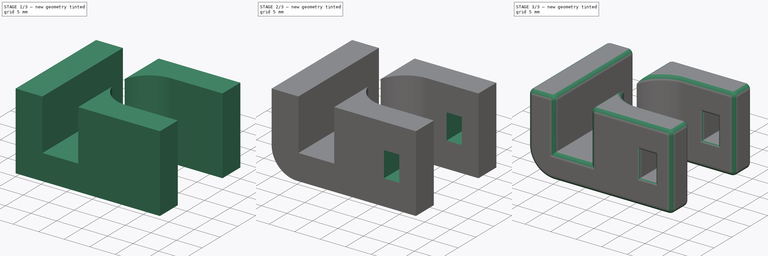
[diagram: build sequence overview — one tinted view per stage of 3, left to right]
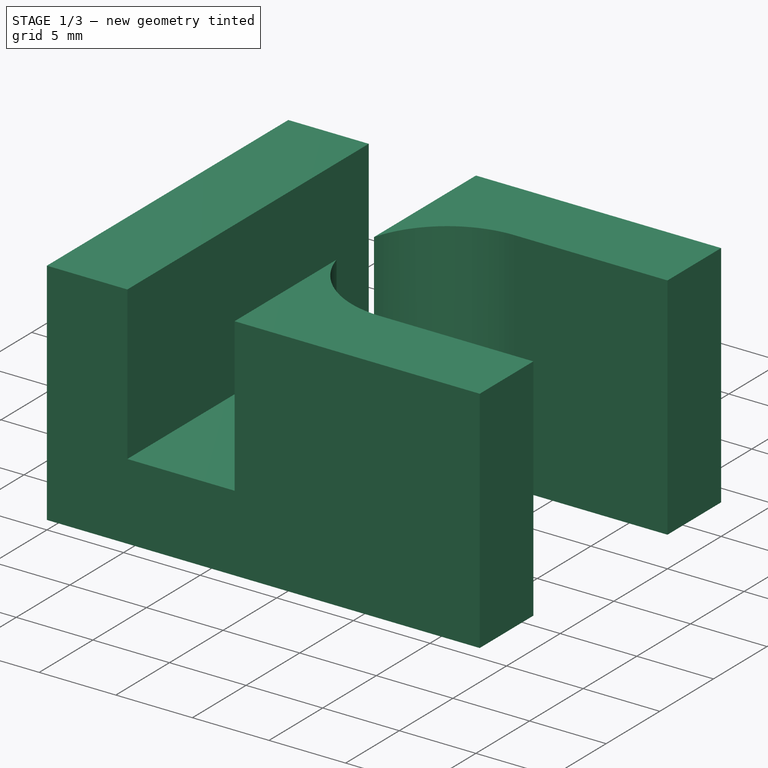
[diagram: stage 1 of 3 — iso view after this stage's code; geometry added in this stage tinted green]
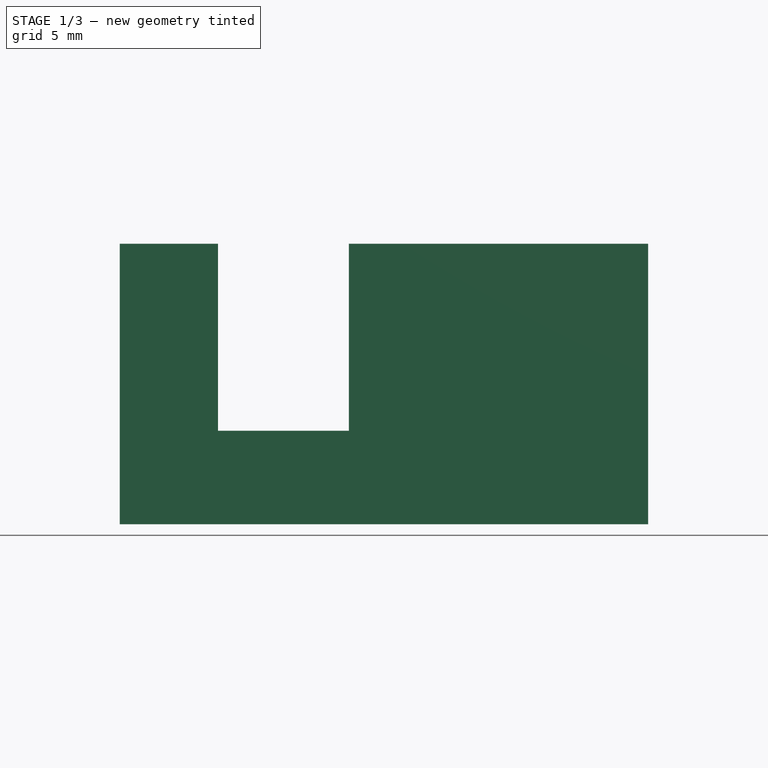
[diagram: stage 1 of 3 — front view after this stage's code; geometry added in this stage tinted green]
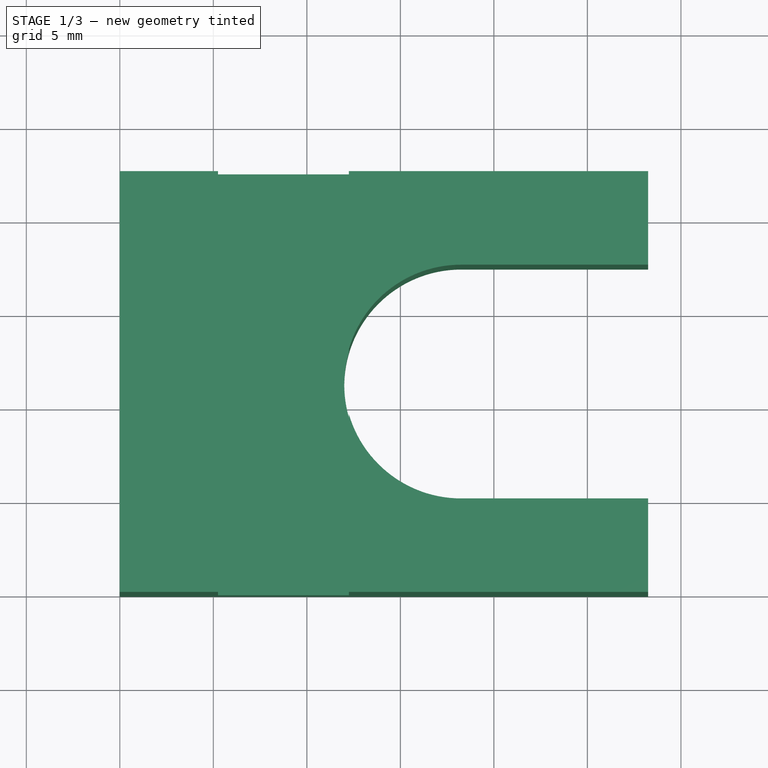
[diagram: stage 1 of 3 — top view after this stage's code; geometry added in this stage tinted green]
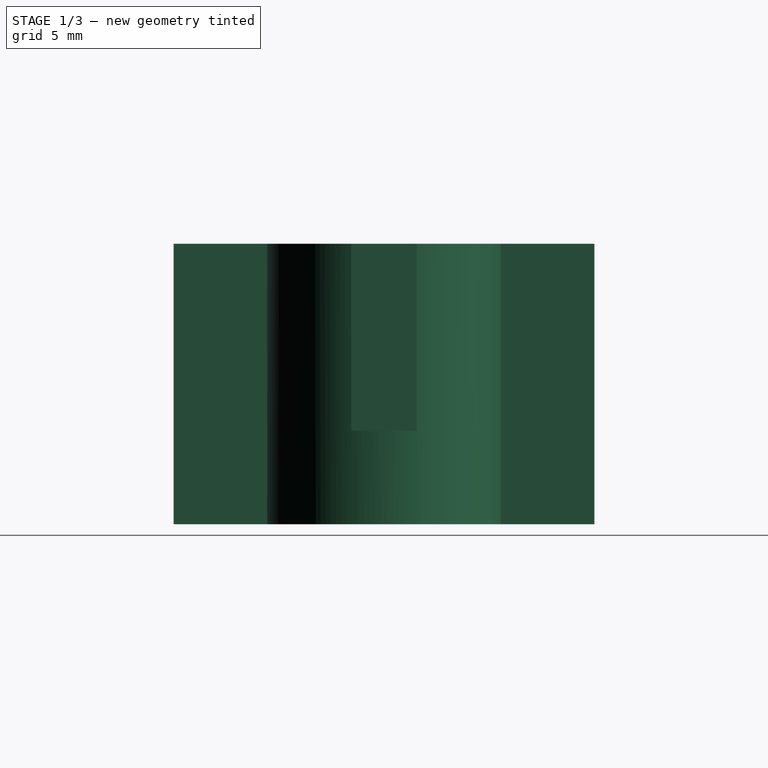
[diagram: stage 1 of 3 — right view after this stage's code; geometry added in this stage tinted green]
FCSTD DOCUMENT  (FreeCAD 0.19R)
Label: balkon_sichtschutz_oben_v4
License: All rights reserved
LicenseURL: http://en.wikipedia.org/wiki/All_rights_reserved
objects: Sketcher::SketchObject×3, PartDesign::Fillet×3, PartDesign::Pocket×2, PartDesign::Pad×1, PartDesign::Body×1
note: 16 computed .brp shape members not serialized (recipe doc carries the construction recipe); baked Part::Feature solids carry a one-line shape summary decoded from their .brp

FEATURE [Sketcher::SketchObject] Sketch
  FullyConstrained = true
  MapMode = 5
  Support = -> [XY_Plane]
  sketch-geometry (8):
    g0: ArcOfCircle CenterX=18.25 CenterY=11.25 CenterZ=0 NormalX=0 NormalY=0 NormalZ=1 AngleXU=0 Radius=6.25 StartAngle=1.5708 EndAngle=4.71239
    g1: LineSegment StartX=18.25 StartY=17.5 StartZ=0 EndX=28.25 EndY=17.5 EndZ=0
    g2: LineSegment StartX=28.25 StartY=17.5 StartZ=0 EndX=28.25 EndY=22.5 EndZ=0
    g3: LineSegment StartX=28.25 StartY=22.5 StartZ=0 EndX=0 EndY=22.5 EndZ=0
    g4: LineSegment StartX=0 StartY=22.5 StartZ=0 EndX=0 EndY=0 EndZ=0
    g5: LineSegment StartX=0 StartY=0 StartZ=0 EndX=28.25 EndY=0 EndZ=0
    g6: LineSegment StartX=28.25 StartY=0 StartZ=0 EndX=28.25 EndY=5 EndZ=0
    g7: LineSegment StartX=28.25 StartY=5 StartZ=0 EndX=18.25 EndY=5 EndZ=0
  constraints (23):
    c: Horizontal(g1)
    c: Coincident(g1,g2)
    c: Vertical(g2)
    c: Coincident(g2,g3)
    c: Horizontal(g3)
    c: Coincident(g3,g4)
    c: Vertical(g4)
    c: Coincident(g4,g5)
    c: Horizontal(g5)
    c: Coincident(g5,g6)
    c: Vertical(g6)
    c: Coincident(g6,g7)
    c: Horizontal(g7)
    c: Tangent(g0,g1) = 1.5708
    c: Coincident(g0,g7)
    c: Vertical(g1,g6)
    c: Equal(g2,g6)
    c: Vertical(g0,g0)
    c: DistanceX(g0,g5) = 10
    c: DistanceY(g1,g2) = 5
    c: DistanceX(g4,g0) = 18.25
    c: Coincident(g-1,g4)
    c: Radius(g0) = 6.25
FEATURE [PartDesign::Pad] Pad
  Direction = (1,1,1)
  Length = 15
  Length2 = 100
  Profile = -> Sketch
  Type = 0
FEATURE [Sketcher::SketchObject] Sketch001
  FullyConstrained = true
  MapMode = 5
  Placement = pos=(0,0,15) rot=(0,0,1;0rad)
  Support = -> [Pad]
  sketch-geometry (4):
    g0: LineSegment StartX=5.25 StartY=22.5 StartZ=0 EndX=12.25 EndY=22.5 EndZ=0
    g1: LineSegment StartX=12.25 StartY=22.5 StartZ=0 EndX=12.25 EndY=0 EndZ=0
    g2: LineSegment StartX=12.25 StartY=0 StartZ=0 EndX=5.25 EndY=0 EndZ=0
    g3: LineSegment StartX=5.25 StartY=0 StartZ=0 EndX=5.25 EndY=22.5 EndZ=0
  constraints (12):
    c: Coincident(g0,g1)
    c: Coincident(g1,g2)
    c: Coincident(g2,g3)
    c: Coincident(g3,g0)
    c: Horizontal(g0)
    c: Horizontal(g2)
    c: Vertical(g1)
    c: Vertical(g3)
    c: DistanceX(g0,g0) = 7
    c: DistanceY(g1,g1) = 22.5
    c: Horizontal(g-1,g2)
    c: DistanceX(g-1,g2) = 5.25
FEATURE [PartDesign::Pocket] Pocket
  BaseFeature = -> Pad
  Length = 10
  Length2 = 100
  Profile = -> Sketch001
  Type = 0
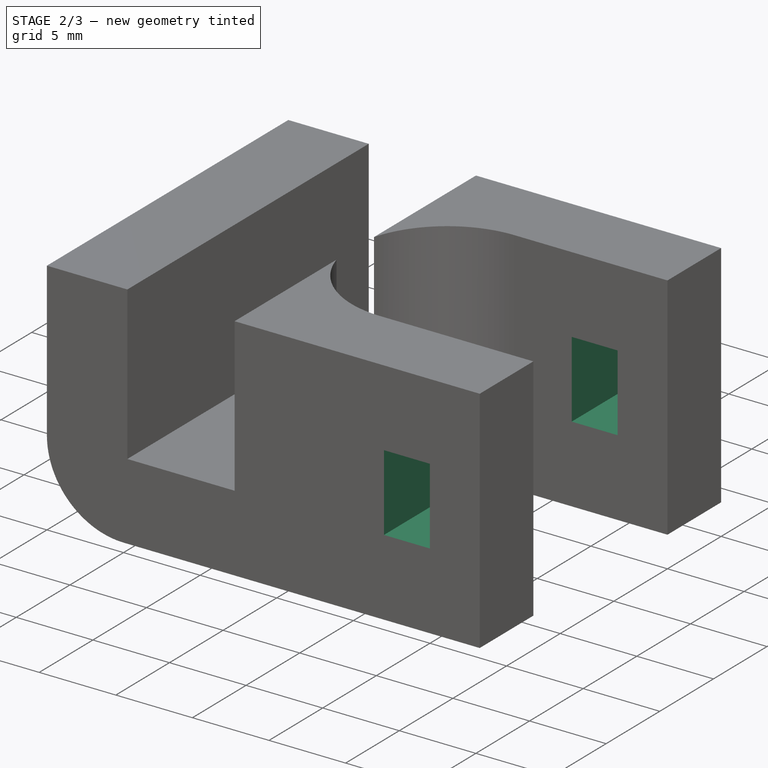
[diagram: stage 2 of 3 — iso view after this stage's code; geometry added in this stage tinted green]
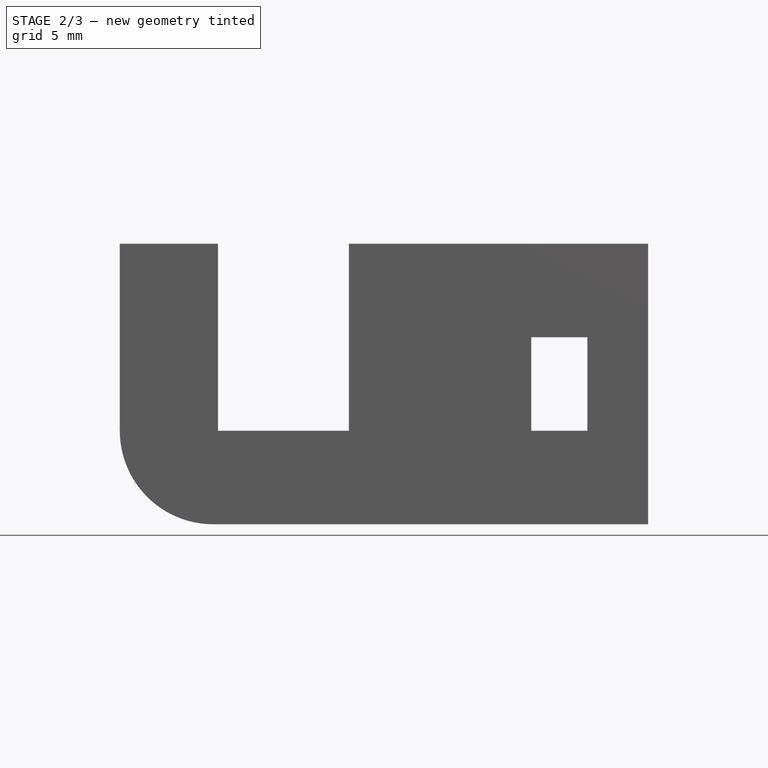
[diagram: stage 2 of 3 — front view after this stage's code; geometry added in this stage tinted green]
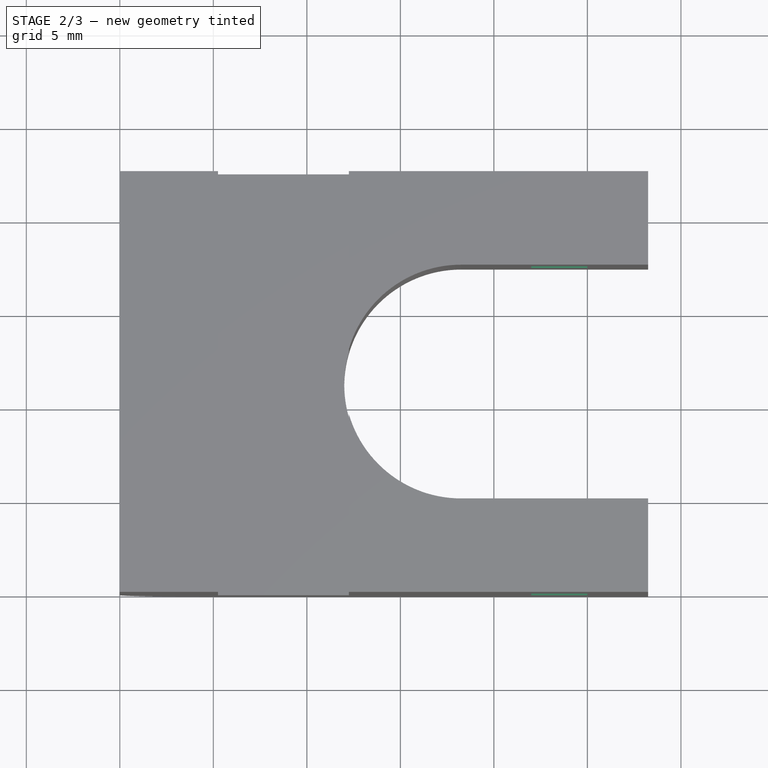
[diagram: stage 2 of 3 — top view after this stage's code; geometry added in this stage tinted green]
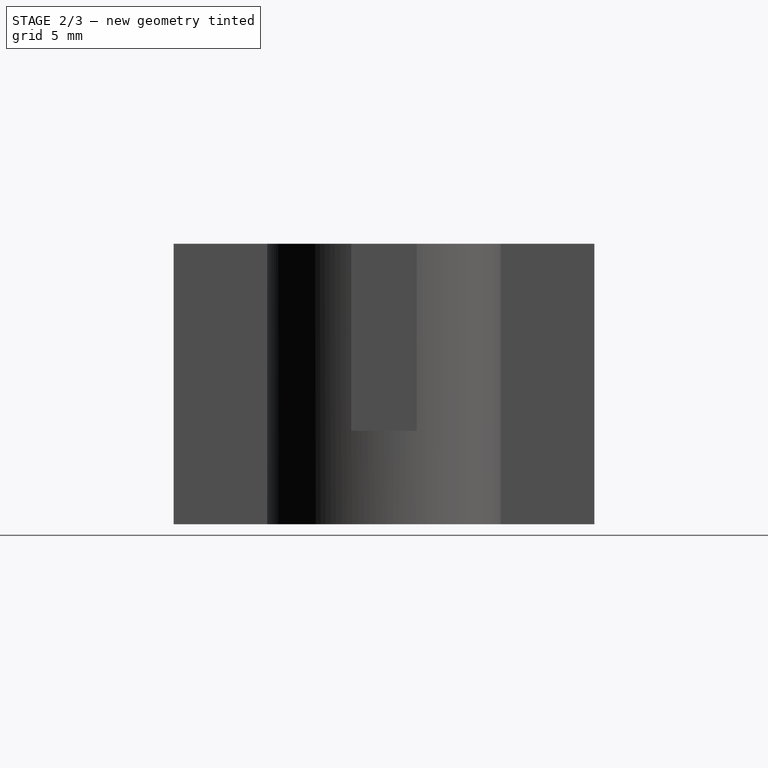
[diagram: stage 2 of 3 — right view after this stage's code; geometry added in this stage tinted green]
FEATURE [Sketcher::SketchObject] Sketch003
  FullyConstrained = true
  MapMode = 5
  Placement = pos=(0,0,0) rot=(1,0,0;1.5708rad)
  sketch-geometry (4):
    g0: LineSegment StartX=22 StartY=10 StartZ=0 EndX=25 EndY=10 EndZ=0
    g1: LineSegment StartX=25 StartY=10 StartZ=0 EndX=25 EndY=5 EndZ=0
    g2: LineSegment StartX=25 StartY=5 StartZ=0 EndX=22 EndY=5 EndZ=0
    g3: LineSegment StartX=22 StartY=5 StartZ=0 EndX=22 EndY=10 EndZ=0
  constraints (12):
    c: Coincident(g0,g1)
    c: Coincident(g1,g2)
    c: Coincident(g2,g3)
    c: Coincident(g3,g0)
    c: Horizontal(g0)
    c: Horizontal(g2)
    c: Vertical(g1)
    c: Vertical(g3)
    c: DistanceX(g0,g0) = 3
    c: DistanceY(g1,g1) = 5
    c: DistanceX(g-1,g2) = 22
    c: DistanceY(g-1,g2) = 5
FEATURE [PartDesign::Pocket] Pocket001
  BaseFeature = -> Pocket
  Length = 5
  Length2 = 100
  Profile = -> Sketch003
  Type = 1
FEATURE [PartDesign::Fillet] Fillet
  Base = -> Pocket001 [Edge12]
  BaseFeature = -> Pocket001
  Radius = 5
  SupportTransform = false
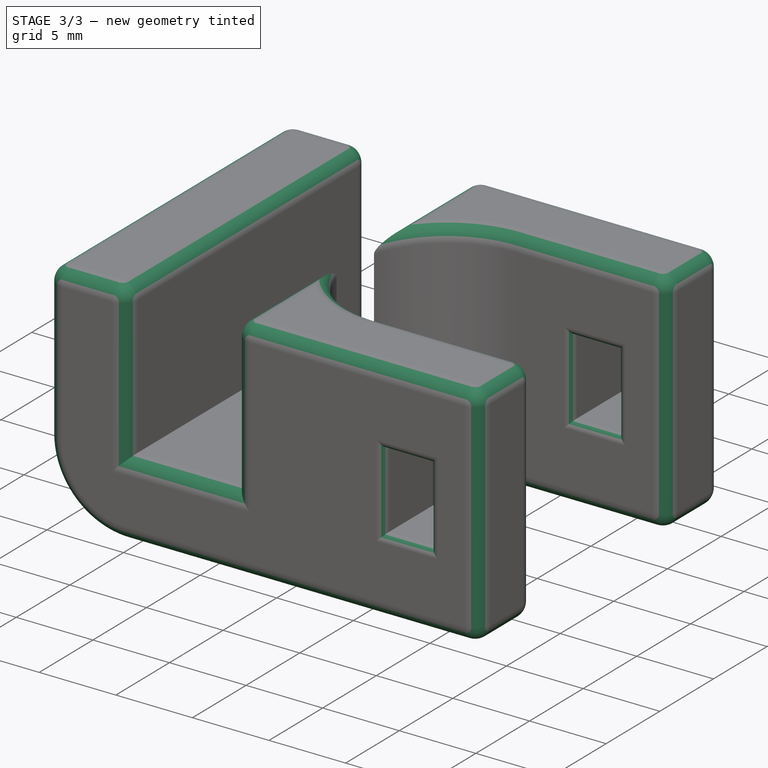
[diagram: stage 3 of 3 — iso view after this stage's code; geometry added in this stage tinted green]
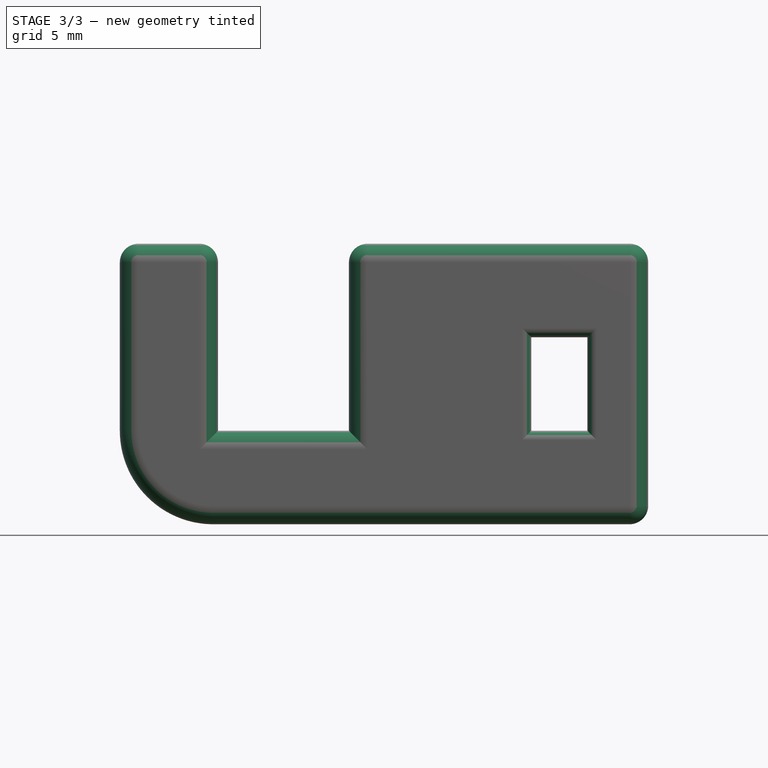
[diagram: stage 3 of 3 — front view after this stage's code; geometry added in this stage tinted green]
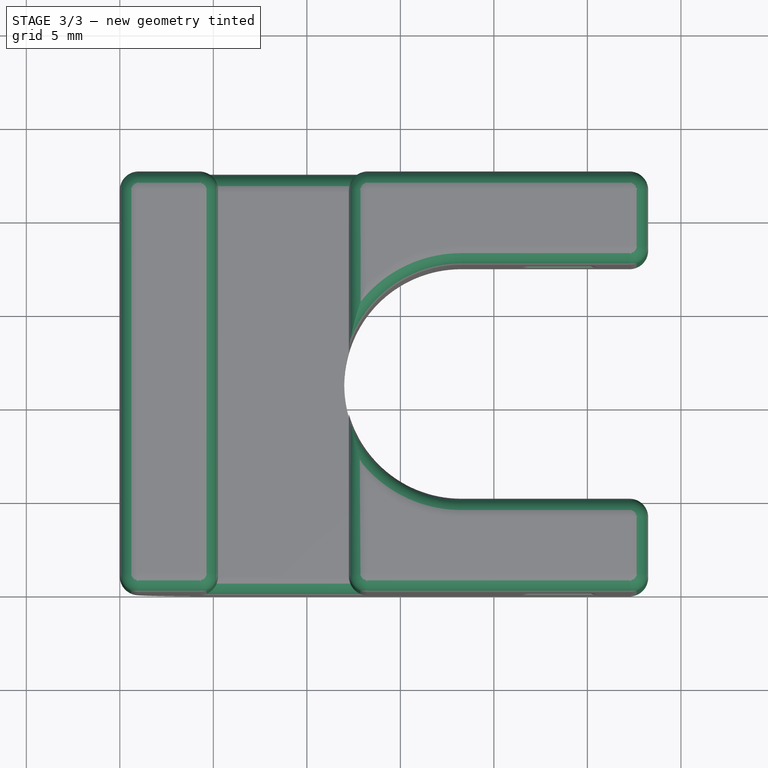
[diagram: stage 3 of 3 — top view after this stage's code; geometry added in this stage tinted green]
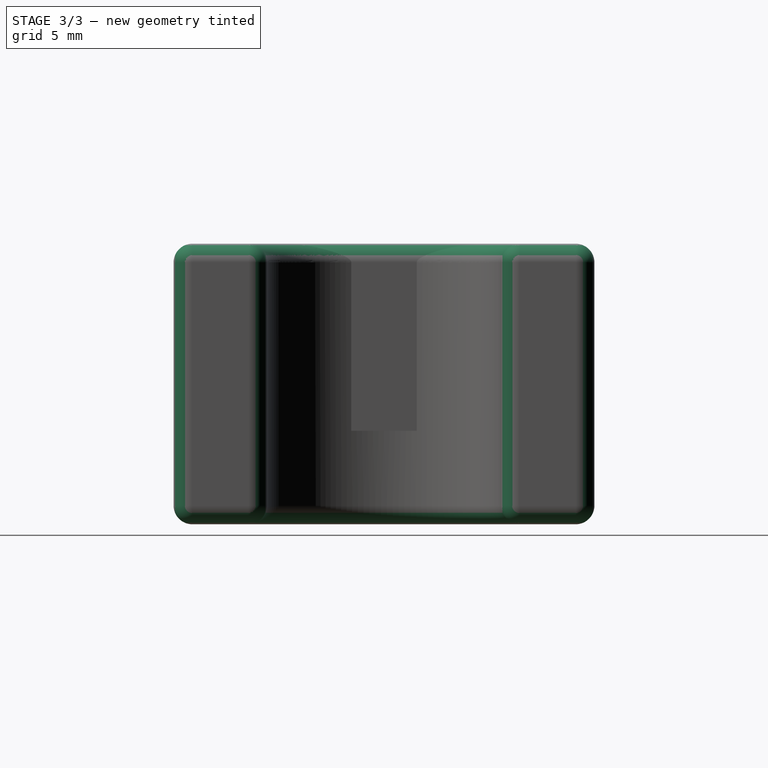
[diagram: stage 3 of 3 — right view after this stage's code; geometry added in this stage tinted green]
FEATURE [PartDesign::Fillet] Fillet001
  Base = -> Fillet [Edge55,Edge57,Edge13,Edge11,Edge26,Edge28,Edge27,Edge43,Edge50,Edge48,Edge65,Edge56,Edge36,Edge44,Edge24,Edge12,Edge10,Edge1,Edge9,Edge15,Edge16,Edge14,Edge29,Edge30,Edge31,Edge4,Edge21,Edge23,Edge3,Edge5,Edge7,Edge42,Edge6,Edge25,Edge8]
  BaseFeature = -> Fillet
  Radius = 1
  SupportTransform = false
FEATURE [PartDesign::Fillet] Fillet002
  Base = -> Fillet001 [Edge59,Edge60,Edge61,Edge58,Edge80,Edge77,Edge78,Edge79,Edge86,Edge87,Edge84,Edge85,Edge48,Edge45,Edge46,Edge47]
  BaseFeature = -> Fillet001
  Radius = 0.5
  SupportTransform = false
FEATURE [PartDesign::Body] Body
  Group = -> [Sketch,Pad,Sketch001,Pocket,Sketch003,Pocket001,Fillet,Fillet001,Fillet002]
  Origin = -> Origin
  Tip = -> Fillet002
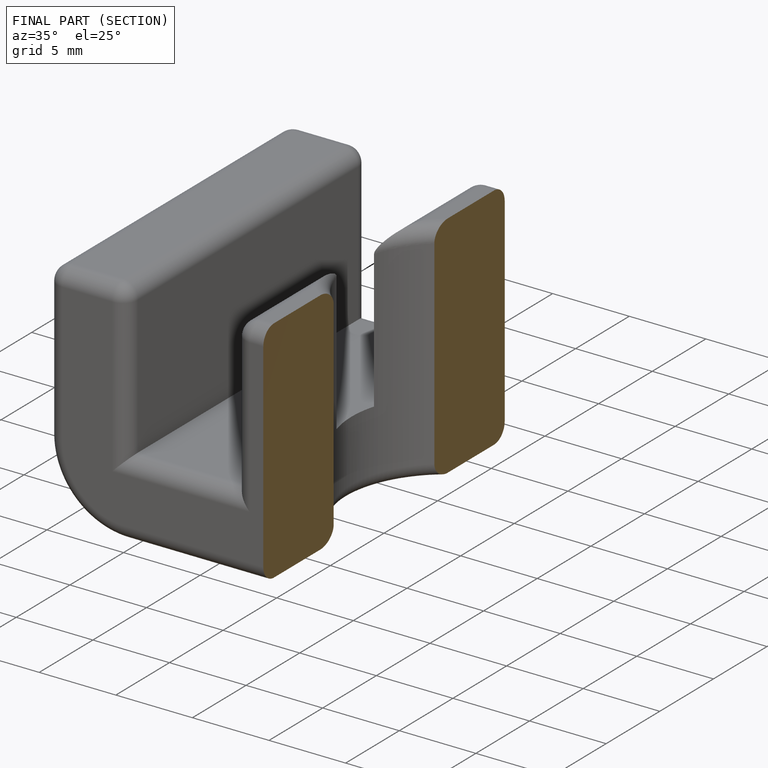
[diagram: finished part — half-section view (interior)]
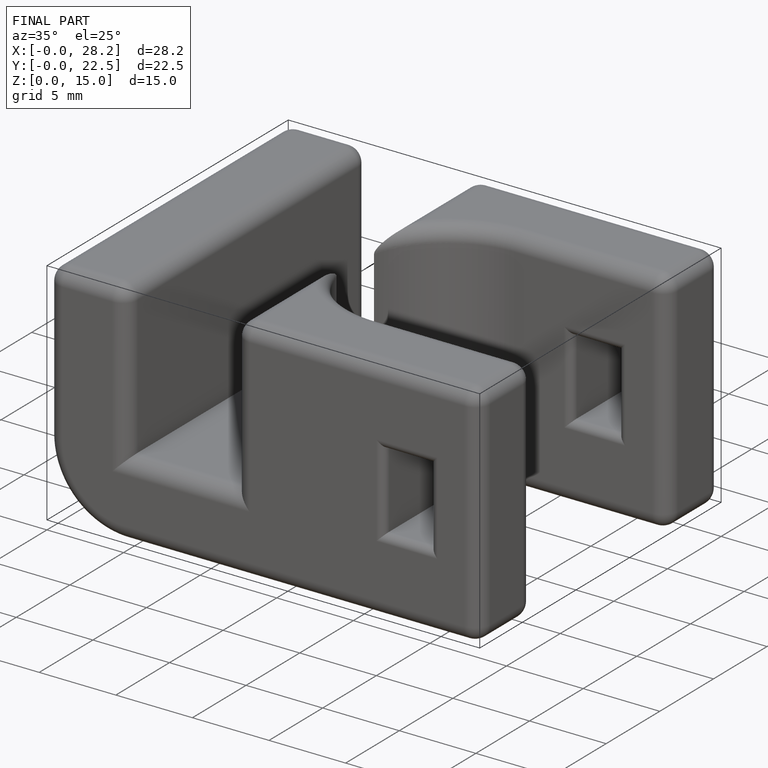
[diagram: finished part — iso view with bounding-box wireframe]
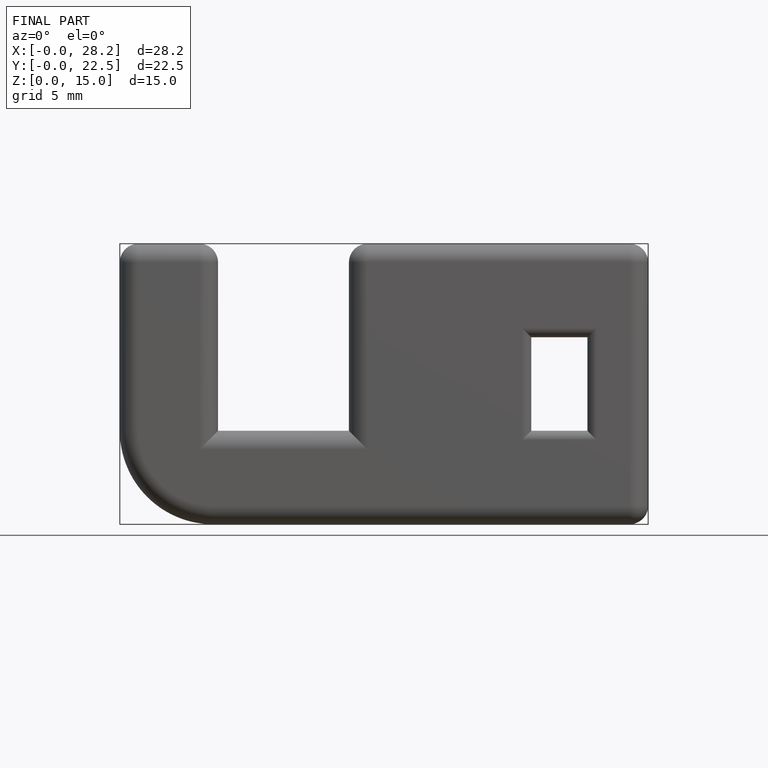
[diagram: finished part — front view with bounding-box wireframe]
